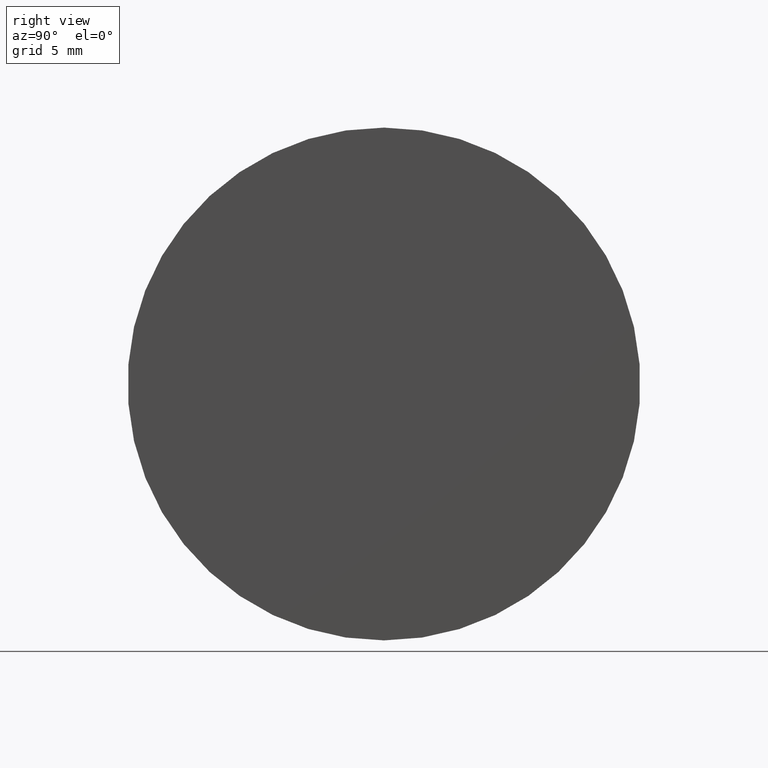
[diagram: clean part render]
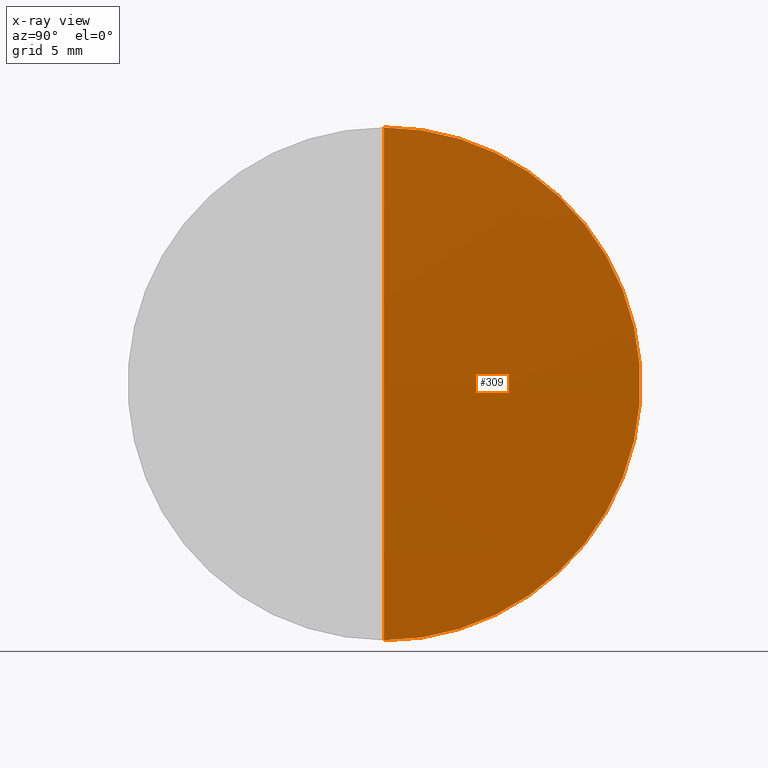
[diagram: x-ray — body ghosted, one internal face saturated and labeled with its STEP entity id]
A machine part, right view, then the same camera in x-ray: the body is ghosted and one INTERNAL B-rep face — a face not visible from any outside direction — is saturated and labeled: STEP entity #309.
In plain terms, the highlighted spherical surface has radius 506.69 mm.
Its self-contained STEP definition (entity closure, byte-faithful):
#13 = DIRECTION ( 'NONE',  ( 0.0000000000000000000, 0.0000000000000000000, 1.000000000000000000 ) ) ;
#20 = DIRECTION ( 'NONE',  ( 0.0000000000000000000, -1.000000000000000000, 0.0000000000000000000 ) ) ;
#46 = EDGE_CURVE ( 'NONE', #204, #99, #320, .T. ) ;
#48 = CIRCLE ( 'NONE', #300, 506.6900000000000000 ) ;
#51 = DIRECTION ( 'NONE',  ( -0.0000000000000000000, 1.000000000000000000, 1.224646799147353200E-016 ) ) ;
#60 = CARTESIAN_POINT ( 'NONE',  ( 657.5142120742816600, 0.0000000000000000000, 19.99999999999986500 ) ) ;
#65 = AXIS2_PLACEMENT_3D ( 'NONE', #80, #178, #13 ) ;
#73 = CIRCLE ( 'NONE', #65, 19.99999999999986500 ) ;
#80 = CARTESIAN_POINT ( 'NONE',  ( 657.5142120742816600, 0.0000000000000000000, 0.0000000000000000000 ) ) ;
#85 = DIRECTION ( 'NONE',  ( 0.0000000000000000000, 0.0000000000000000000, 1.000000000000000000 ) ) ;
#99 = VERTEX_POINT ( 'NONE', #265 ) ;
#106 = CARTESIAN_POINT ( 'NONE',  ( 151.2190846041469300, 0.0000000000000000000, -1.344597157034381000E-013 ) ) ;
#126 = EDGE_CURVE ( 'NONE', #204, #164, #48, .T. ) ;
#131 = DIRECTION ( 'NONE',  ( 0.0000000000000000000, 0.0000000000000000000, -1.000000000000000000 ) ) ;
#134 = ORIENTED_EDGE ( 'NONE', *, *, #174, .F. ) ;
#143 = FACE_OUTER_BOUND ( 'NONE', #195, .T. ) ;
#164 = VERTEX_POINT ( 'NONE', #60 ) ;
#174 = EDGE_CURVE ( 'NONE', #164, #99, #73, .T. ) ;
#178 = DIRECTION ( 'NONE',  ( -1.000000000000000000, -0.0000000000000000000, -0.0000000000000000000 ) ) ;
#180 = DIRECTION ( 'NONE',  ( 0.0000000000000000000, -1.224646799147353200E-016, 1.000000000000000000 ) ) ;
#186 = CARTESIAN_POINT ( 'NONE',  ( 151.2190846041469300, 0.0000000000000000000, -1.344597157034381000E-013 ) ) ;
#195 = EDGE_LOOP ( 'NONE', ( #274, #217, #134 ) ) ;
#204 = VERTEX_POINT ( 'NONE', #292 ) ;
#217 = ORIENTED_EDGE ( 'NONE', *, *, #46, .T. ) ;
#220 = SPHERICAL_SURFACE ( 'NONE', #306, 506.6900000000000000 ) ;
#242 = CARTESIAN_POINT ( 'NONE',  ( 151.2190846041469300, 0.0000000000000000000, -1.344597157034381000E-013 ) ) ;
#255 = DIRECTION ( 'NONE',  ( 0.0000000000000000000, 1.000000000000000000, 0.0000000000000000000 ) ) ;
#265 = CARTESIAN_POINT ( 'NONE',  ( 657.5142120742816600, 2.449293598294689900E-015, -19.99999999999986500 ) ) ;
#274 = ORIENTED_EDGE ( 'NONE', *, *, #126, .F. ) ;
#280 = AXIS2_PLACEMENT_3D ( 'NONE', #242, #51, #180 ) ;
#292 = CARTESIAN_POINT ( 'NONE',  ( 657.9090846041468700, 0.0000000000000000000, -1.034339013704394600E-013 ) ) ;
#300 = AXIS2_PLACEMENT_3D ( 'NONE', #106, #20, #131 ) ;
#306 = AXIS2_PLACEMENT_3D ( 'NONE', #186, #255, #85 ) ;
#309 = ADVANCED_FACE ( 'NONE', ( #143 ), #220, .T. ) ;
#320 = CIRCLE ( 'NONE', #280, 506.6900000000000000 ) ;